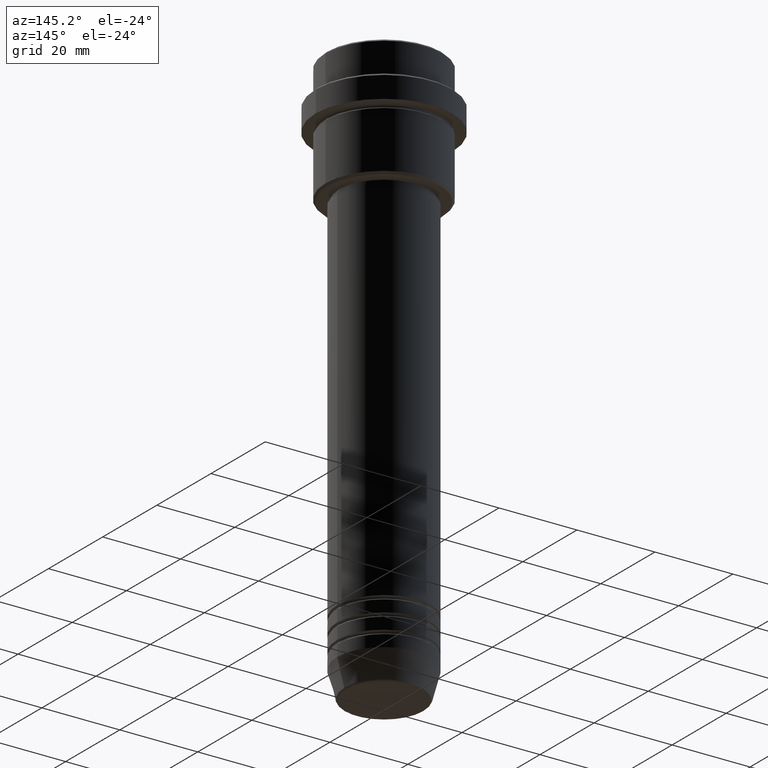
[diagram: clean part render]
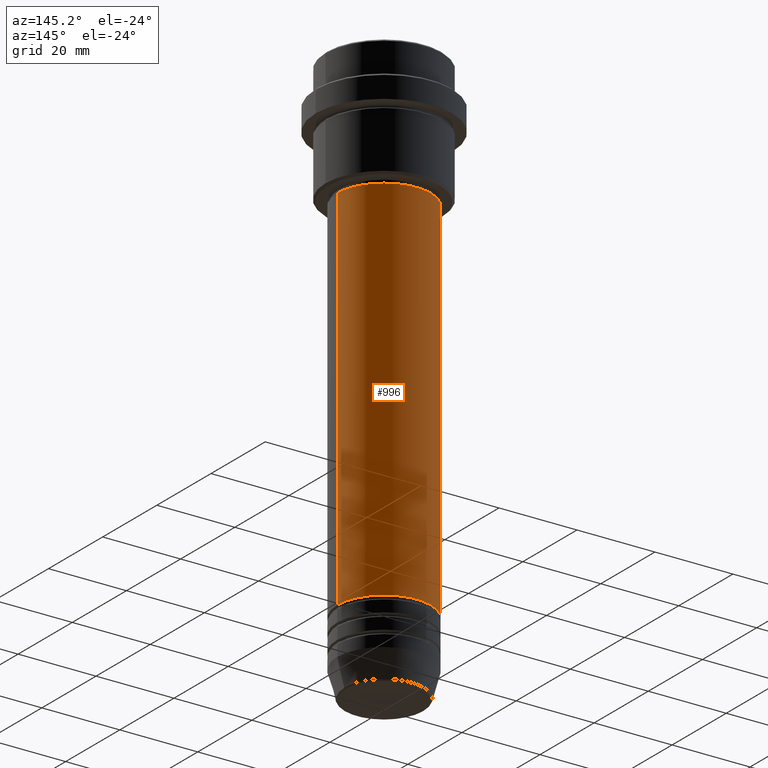
[diagram: same view with one face highlighted and labeled with its STEP entity id]
A machine part, auxiliary view. The second image highlights one B-rep face of the part: STEP entity #996.
In plain terms, the highlighted cylindrical surface (partial cylindrical patch) has radius 12 mm, axis along (-0, -0, 1).
Its self-contained STEP definition (entity closure, byte-faithful):
#12 = CARTESIAN_POINT ( 'NONE',  ( -12.00000000000000000, 1.469576158976823947E-15, -126.9999999999998579 ) ) ;
#41 = CARTESIAN_POINT ( 'NONE',  ( -12.00000000000000000, 1.469576158976823947E-15, 0.000000000000000000 ) ) ;
#82 = AXIS2_PLACEMENT_3D ( 'NONE', #474, #1371, #381 ) ;
#84 = DIRECTION ( 'NONE',  ( 1.000000000000000000, 0.000000000000000000, 0.000000000000000000 ) ) ;
#116 = EDGE_LOOP ( 'NONE', ( #810, #269, #1234, #1172 ) ) ;
#168 = VERTEX_POINT ( 'NONE', #940 ) ;
#269 = ORIENTED_EDGE ( 'NONE', *, *, #1104, .T. ) ;
#292 = CARTESIAN_POINT ( 'NONE',  ( 11.99999999999999822, 0.000000000000000000, -31.99999999999999289 ) ) ;
#361 = DIRECTION ( 'NONE',  ( -0.000000000000000000, -0.000000000000000000, 1.000000000000000000 ) ) ;
#381 = DIRECTION ( 'NONE',  ( 1.000000000000000000, 0.000000000000000000, 0.000000000000000000 ) ) ;
#417 = DIRECTION ( 'NONE',  ( -0.000000000000000000, -0.000000000000000000, 1.000000000000000000 ) ) ;
#454 = CARTESIAN_POINT ( 'NONE',  ( -11.99999999999999822, 1.469576158976823750E-15, -31.99999999999999289 ) ) ;
#474 = CARTESIAN_POINT ( 'NONE',  ( 0.000000000000000000, 0.000000000000000000, 0.000000000000000000 ) ) ;
#495 = CYLINDRICAL_SURFACE ( 'NONE', #82, 12.00000000000000000 ) ;
#519 = VECTOR ( 'NONE', #1138, 1000.000000000000000 ) ;
#546 = VERTEX_POINT ( 'NONE', #292 ) ;
#695 = EDGE_CURVE ( 'NONE', #168, #1157, #1294, .T. ) ;
#807 = EDGE_CURVE ( 'NONE', #168, #546, #1287, .T. ) ;
#810 = ORIENTED_EDGE ( 'NONE', *, *, #695, .T. ) ;
#815 = AXIS2_PLACEMENT_3D ( 'NONE', #1225, #361, #1219 ) ;
#838 = AXIS2_PLACEMENT_3D ( 'NONE', #1064, #842, #84 ) ;
#842 = DIRECTION ( 'NONE',  ( -0.000000000000000000, -0.000000000000000000, 1.000000000000000000 ) ) ;
#940 = CARTESIAN_POINT ( 'NONE',  ( 12.00000000000000000, 0.000000000000000000, -126.9999999999998579 ) ) ;
#941 = EDGE_CURVE ( 'NONE', #546, #974, #1340, .T. ) ;
#974 = VERTEX_POINT ( 'NONE', #454 ) ;
#996 = ADVANCED_FACE ( 'NONE', ( #1247 ), #495, .T. ) ;
#1018 = LINE ( 'NONE', #41, #519 ) ;
#1064 = CARTESIAN_POINT ( 'NONE',  ( 0.000000000000000000, 0.000000000000000000, -126.9999999999998579 ) ) ;
#1068 = VECTOR ( 'NONE', #417, 1000.000000000000000 ) ;
#1104 = EDGE_CURVE ( 'NONE', #1157, #974, #1018, .T. ) ;
#1138 = DIRECTION ( 'NONE',  ( -0.000000000000000000, -0.000000000000000000, 1.000000000000000000 ) ) ;
#1157 = VERTEX_POINT ( 'NONE', #12 ) ;
#1172 = ORIENTED_EDGE ( 'NONE', *, *, #807, .F. ) ;
#1219 = DIRECTION ( 'NONE',  ( 1.000000000000000000, 0.000000000000000000, 0.000000000000000000 ) ) ;
#1225 = CARTESIAN_POINT ( 'NONE',  ( 0.000000000000000000, 0.000000000000000000, -31.99999999999999289 ) ) ;
#1234 = ORIENTED_EDGE ( 'NONE', *, *, #941, .F. ) ;
#1247 = FACE_OUTER_BOUND ( 'NONE', #116, .T. ) ;
#1287 = LINE ( 'NONE', #1401, #1068 ) ;
#1294 = CIRCLE ( 'NONE', #838, 12.00000000000000000 ) ;
#1340 = CIRCLE ( 'NONE', #815, 11.99999999999999822 ) ;
#1371 = DIRECTION ( 'NONE',  ( -0.000000000000000000, -0.000000000000000000, 1.000000000000000000 ) ) ;
#1401 = CARTESIAN_POINT ( 'NONE',  ( 12.00000000000000000, 0.000000000000000000, 0.000000000000000000 ) ) ;